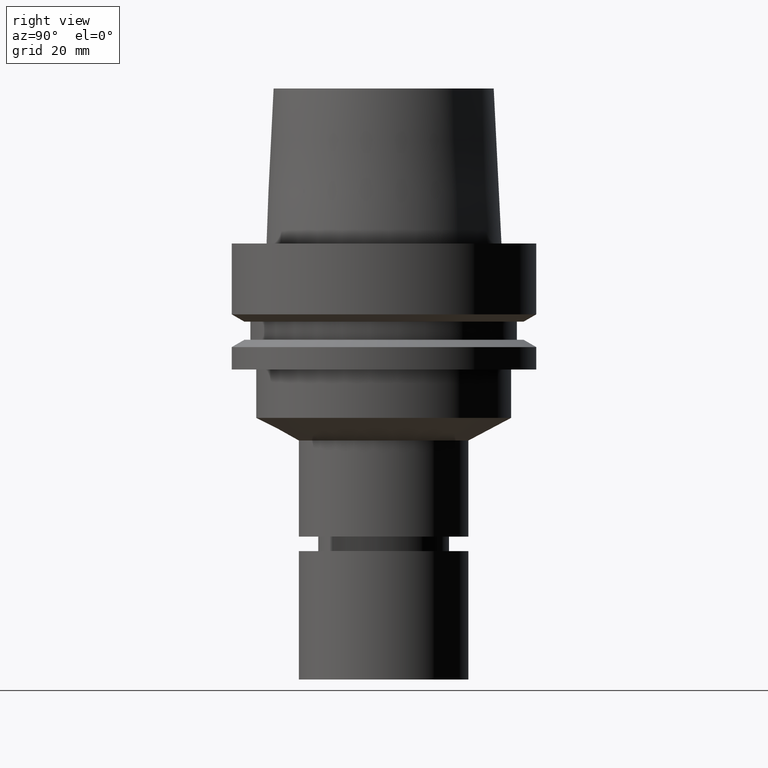
[diagram: clean part render]
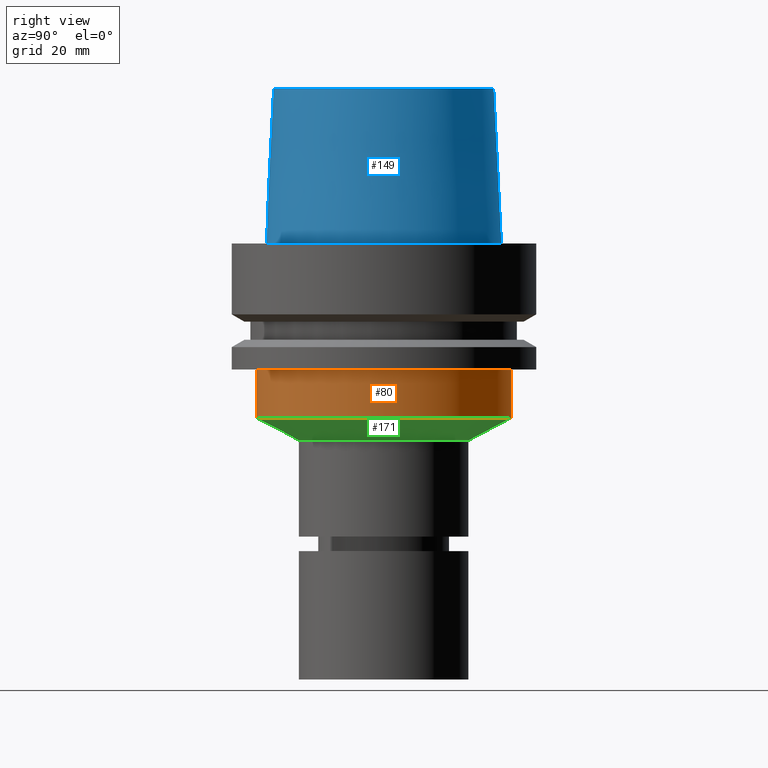
[diagram: same view with three faces highlighted in distinct colors, each labeled with its STEP entity id]
A machine part, right view with three faces highlighted in distinct colors.
Their STEP definitions:

[orange] entity #80 — the highlighted cylindrical surface (bore or boss wall) has radius 26.3 mm, axis along (-0, -0, 1).
#80=ADVANCED_FACE('Unnamed[1]',(#216,#217),#218,.T.);
#128=EDGE_CURVE('Unnamed[1]',#291,#291,#292,.T.);
#184=EDGE_CURVE('Unnamed[1]',#376,#376,#377,.T.);
#216=FACE_BOUND('',#408,.T.);
#217=FACE_BOUND('',#409,.T.);
#218=CYLINDRICAL_SURFACE('',#410,26.3);
#291=VERTEX_POINT('',#500);
#292=CIRCLE('',#501,26.3);
#376=VERTEX_POINT('',#607);
#377=CIRCLE('',#608,26.3);
#408=EDGE_LOOP('',(#631));
#409=EDGE_LOOP('',(#632));
#410=AXIS2_PLACEMENT_3D('',#633,#634,#635);
#500=CARTESIAN_POINT('',(1.59204083889154E-015,26.3,-25.9999999999997));
#501=AXIS2_PLACEMENT_3D('',#716,#717,#718);
#607=CARTESIAN_POINT('',(2.20436423846525E-015,26.3,-36.0000000000003));
#608=AXIS2_PLACEMENT_3D('',#808,#809,#810);
#631=ORIENTED_EDGE('',*,*,#128,.F.);
#632=ORIENTED_EDGE('',*,*,#184,.T.);
#633=CARTESIAN_POINT('',(1.8982025386784E-015,3.79640507735679E-015,-31.0));
#634=DIRECTION('',(-6.12323399573677E-017,-1.22464679914735E-016,1.0));
#635=DIRECTION('',(-1.23259516440783E-032,1.0,1.22464679914735E-016));
#716=CARTESIAN_POINT('',(1.59204083889154E-015,3.18408167778308E-015,-25.9999999999997));
#717=DIRECTION('',(-6.12323399573677E-017,-1.22464679914735E-016,1.0));
#718=DIRECTION('',(-1.23259516440783E-032,1.0,1.22464679914735E-016));
#808=CARTESIAN_POINT('',(2.20436423846525E-015,4.40872847693051E-015,-36.0000000000003));
#809=DIRECTION('',(-6.12323399573677E-017,-1.22464679914735E-016,1.0));
#810=DIRECTION('',(-1.23259516440783E-032,1.0,1.22464679914735E-016));

[blue] entity #149 — the highlighted conical surface has half-angle 2.862 deg.
#85=EDGE_CURVE('Unnamed[1]',#225,#225,#226,.T.);
#130=EDGE_CURVE('Unnamed[1]',#294,#294,#295,.T.);
#149=ADVANCED_FACE('Unnamed[1]',(#322,#323),#324,.T.);
#225=VERTEX_POINT('',#419);
#226=CIRCLE('',#420,24.315);
#294=VERTEX_POINT('',#504);
#295=CIRCLE('',#505,22.715);
#322=FACE_BOUND('',#540,.T.);
#323=FACE_BOUND('',#541,.T.);
#324=CONICAL_SURFACE('',#542,23.515,0.0499583957219433);
#419=CARTESIAN_POINT('',(-2.99705514225764E-031,24.315,2.97772869212679E-015));
#420=AXIS2_PLACEMENT_3D('',#642,#643,#644);
#504=CARTESIAN_POINT('',(-1.95943487863576E-015,22.715,32.0));
#505=AXIS2_PLACEMENT_3D('',#719,#720,#721);
#540=EDGE_LOOP('',(#749));
#541=EDGE_LOOP('',(#750));
#542=AXIS2_PLACEMENT_3D('',#751,#752,#753);
#642=CARTESIAN_POINT('',(0.0,0.0,0.0));
#643=DIRECTION('',(-6.12323399573677E-017,-1.22464679914735E-016,1.0));
#644=DIRECTION('',(-1.23259516440783E-032,1.0,1.22464679914735E-016));
#719=CARTESIAN_POINT('',(-1.95943487863576E-015,-3.91886975727153E-015,32.0));
#720=DIRECTION('',(-6.12323399573676E-017,-1.22464679914735E-016,1.0));
#721=DIRECTION('',(-1.23259516440783E-032,1.0,1.22464679914735E-016));
#749=ORIENTED_EDGE('',*,*,#130,.F.);
#750=ORIENTED_EDGE('',*,*,#85,.T.);
#751=CARTESIAN_POINT('',(-9.79717439317882E-016,-1.95943487863576E-015,16.0));
#752=DIRECTION('',(6.12323399573677E-017,1.22464679914735E-016,-1.0));
#753=DIRECTION('',(-1.23259516440783E-032,1.0,1.22464679914735E-016));

[green] entity #171 — the highlighted conical surface has half-angle 62.097 deg.
#142=EDGE_CURVE('Unnamed[1]',#312,#312,#313,.T.);
#171=ADVANCED_FACE('Unnamed[1]',(#356,#357),#358,.T.);
#184=EDGE_CURVE('Unnamed[1]',#376,#376,#377,.T.);
#312=VERTEX_POINT('',#527);
#313=CIRCLE('',#528,17.4999999999998);
#356=FACE_BOUND('',#583,.T.);
#357=FACE_BOUND('',#584,.T.);
#358=CONICAL_SURFACE('',#585,21.8999999999999,1.08379854829247);
#376=VERTEX_POINT('',#607);
#377=CIRCLE('',#608,26.3);
#527=CARTESIAN_POINT('',(2.48970289259618E-015,17.4999999999998,-40.6599338573311));
#528=AXIS2_PLACEMENT_3D('',#739,#740,#741);
#583=EDGE_LOOP('',(#787));
#584=EDGE_LOOP('',(#788));
#585=AXIS2_PLACEMENT_3D('',#789,#790,#791);
#607=CARTESIAN_POINT('',(2.20436423846525E-015,26.3,-36.0000000000003));
#608=AXIS2_PLACEMENT_3D('',#808,#809,#810);
#739=CARTESIAN_POINT('',(2.48970289259618E-015,4.97940578519236E-015,-40.6599338573311));
#740=DIRECTION('',(-6.12323399573677E-017,-1.22464679914735E-016,1.0));
#741=DIRECTION('',(-1.23259516440783E-032,1.0,1.22464679914735E-016));
#787=ORIENTED_EDGE('',*,*,#184,.F.);
#788=ORIENTED_EDGE('',*,*,#142,.T.);
#789=CARTESIAN_POINT('',(2.34703356553072E-015,4.69406713106143E-015,-38.3299669286657));
#790=DIRECTION('',(-6.12323399573677E-017,-1.22464679914735E-016,1.0));
#791=DIRECTION('',(-1.23259516440783E-032,1.0,1.22464679914735E-016));
#808=CARTESIAN_POINT('',(2.20436423846525E-015,4.40872847693051E-015,-36.0000000000003));
#809=DIRECTION('',(-6.12323399573677E-017,-1.22464679914735E-016,1.0));
#810=DIRECTION('',(-1.23259516440783E-032,1.0,1.22464679914735E-016));